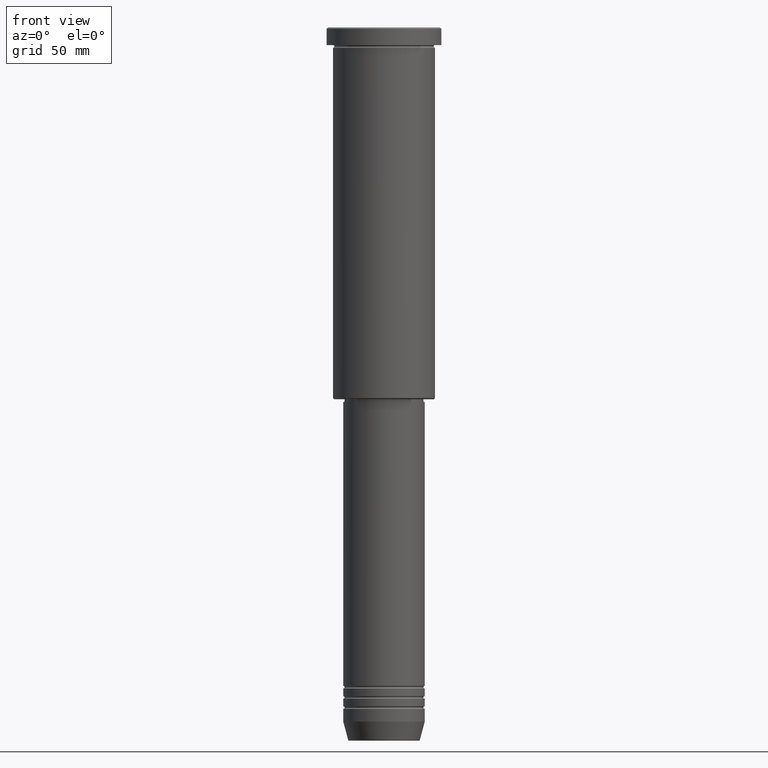
[diagram: clean part render]
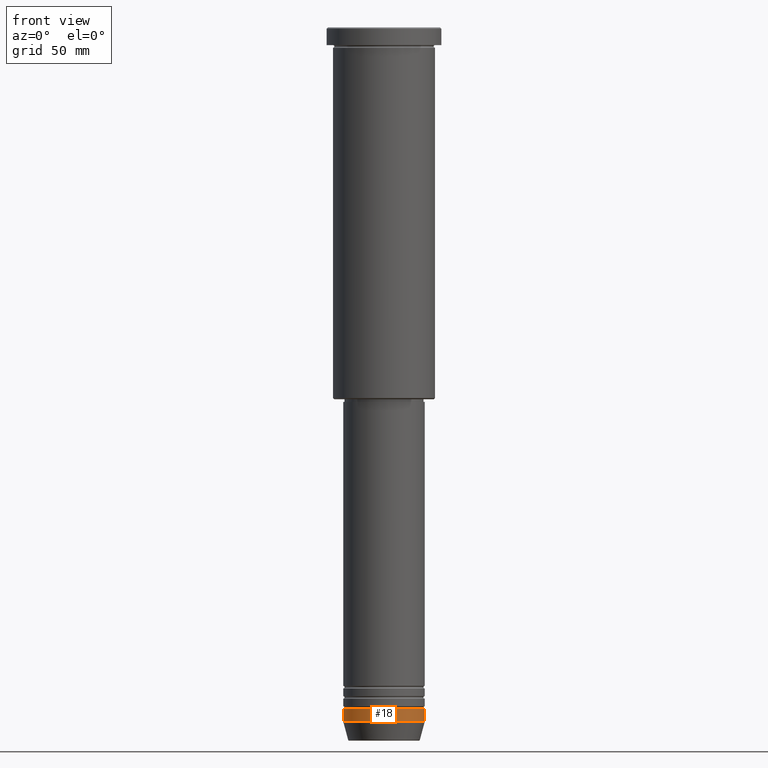
[diagram: same view with one face highlighted and labeled with its STEP entity id]
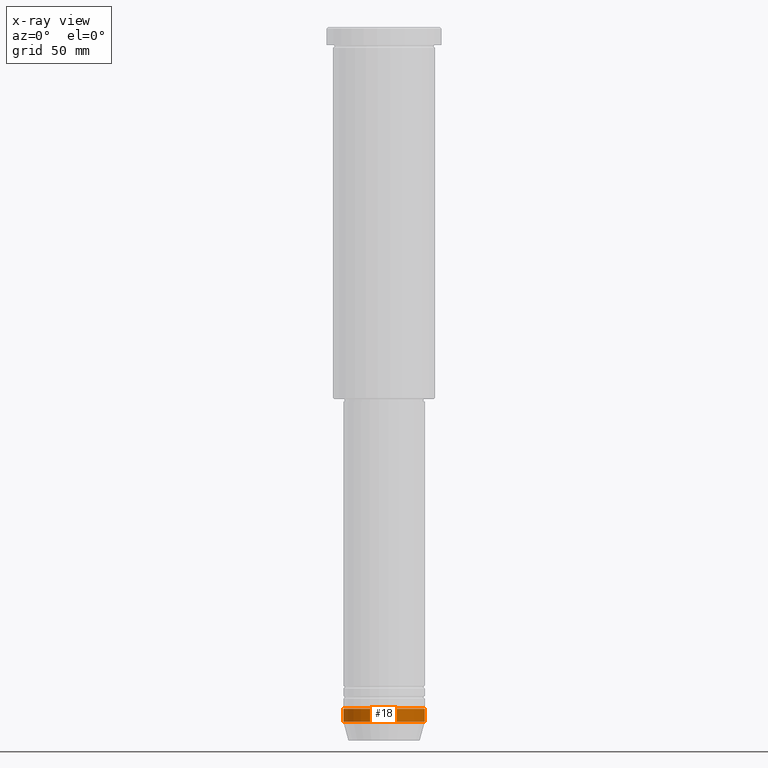
[diagram: x-ray of the same camera — body ghosted, the highlighted face saturated]
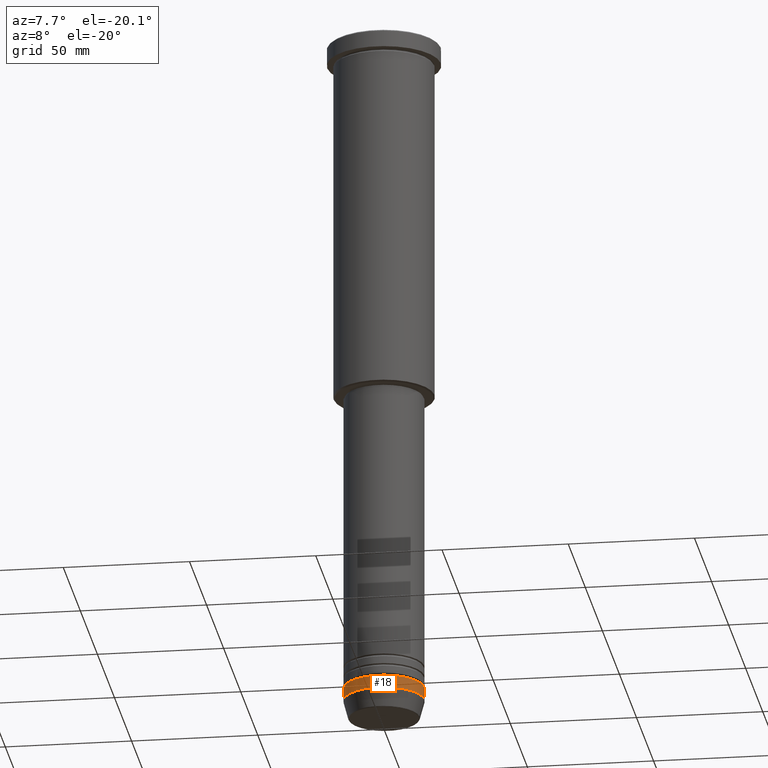
[diagram: same view with one face highlighted and labeled with its STEP entity id]
A machine part, front view. The second image highlights one B-rep face of the part: STEP entity #18.
The next image is the same camera in x-ray: the body ghosted, the highlighted face saturated — about 0% of this face is hidden behind the body in this view.
A second angle (auxiliary view) of the same face is appended — the face is thin or edge-on in the first view.
In plain terms, the highlighted cylindrical surface (partial cylindrical patch) has radius 16 mm, axis along (-0, -0, 1).
Its self-contained STEP definition (entity closure, byte-faithful):
#14 = VERTEX_POINT ( 'NONE', #983 ) ;
#15 = LINE ( 'NONE', #848, #1053 ) ;
#18 = ADVANCED_FACE ( 'NONE', ( #1160 ), #635, .T. ) ;
#39 = CIRCLE ( 'NONE', #619, 16.00000000000000000 ) ;
#56 = CIRCLE ( 'NONE', #972, 16.00000000000000000 ) ;
#96 = VECTOR ( 'NONE', #664, 1000.000000000000000 ) ;
#138 = DIRECTION ( 'NONE',  ( -0.000000000000000000, -0.000000000000000000, 1.000000000000000000 ) ) ;
#157 = CARTESIAN_POINT ( 'NONE',  ( 0.000000000000000000, 0.000000000000000000, -267.5000000000000000 ) ) ;
#274 = VERTEX_POINT ( 'NONE', #830 ) ;
#284 = LINE ( 'NONE', #293, #96 ) ;
#293 = CARTESIAN_POINT ( 'NONE',  ( -16.00000000000000000, 1.959434878635765131E-15, 0.000000000000000000 ) ) ;
#353 = ORIENTED_EDGE ( 'NONE', *, *, #1145, .F. ) ;
#392 = DIRECTION ( 'NONE',  ( -0.000000000000000000, -0.000000000000000000, 1.000000000000000000 ) ) ;
#420 = ORIENTED_EDGE ( 'NONE', *, *, #814, .F. ) ;
#422 = DIRECTION ( 'NONE',  ( 1.000000000000000000, 0.000000000000000000, 0.000000000000000000 ) ) ;
#439 = VERTEX_POINT ( 'NONE', #689 ) ;
#619 = AXIS2_PLACEMENT_3D ( 'NONE', #157, #1144, #422 ) ;
#624 = DIRECTION ( 'NONE',  ( 1.000000000000000000, 0.000000000000000000, 0.000000000000000000 ) ) ;
#635 = CYLINDRICAL_SURFACE ( 'NONE', #718, 16.00000000000000000 ) ;
#648 = DIRECTION ( 'NONE',  ( -0.000000000000000000, -0.000000000000000000, 1.000000000000000000 ) ) ;
#664 = DIRECTION ( 'NONE',  ( -0.000000000000000000, -0.000000000000000000, 1.000000000000000000 ) ) ;
#689 = CARTESIAN_POINT ( 'NONE',  ( 16.00000000000000000, 0.000000000000000000, -267.5000000000000000 ) ) ;
#718 = AXIS2_PLACEMENT_3D ( 'NONE', #808, #648, #1002 ) ;
#763 = EDGE_CURVE ( 'NONE', #1111, #274, #56, .T. ) ;
#765 = CARTESIAN_POINT ( 'NONE',  ( -16.00000000000000000, 1.959434878635765131E-15, -272.5000000000000000 ) ) ;
#794 = CARTESIAN_POINT ( 'NONE',  ( 0.000000000000000000, 0.000000000000000000, -272.5000000000000000 ) ) ;
#808 = CARTESIAN_POINT ( 'NONE',  ( 0.000000000000000000, 0.000000000000000000, 0.000000000000000000 ) ) ;
#810 = EDGE_LOOP ( 'NONE', ( #353, #962, #1003, #420 ) ) ;
#814 = EDGE_CURVE ( 'NONE', #14, #439, #39, .T. ) ;
#830 = CARTESIAN_POINT ( 'NONE',  ( 16.00000000000000000, 0.000000000000000000, -272.5000000000000000 ) ) ;
#848 = CARTESIAN_POINT ( 'NONE',  ( 16.00000000000000000, 0.000000000000000000, 0.000000000000000000 ) ) ;
#962 = ORIENTED_EDGE ( 'NONE', *, *, #763, .T. ) ;
#972 = AXIS2_PLACEMENT_3D ( 'NONE', #794, #138, #624 ) ;
#983 = CARTESIAN_POINT ( 'NONE',  ( -16.00000000000000000, 1.959434878635765131E-15, -267.5000000000000000 ) ) ;
#1002 = DIRECTION ( 'NONE',  ( 1.000000000000000000, 0.000000000000000000, 0.000000000000000000 ) ) ;
#1003 = ORIENTED_EDGE ( 'NONE', *, *, #1055, .T. ) ;
#1053 = VECTOR ( 'NONE', #392, 1000.000000000000000 ) ;
#1055 = EDGE_CURVE ( 'NONE', #274, #439, #15, .T. ) ;
#1111 = VERTEX_POINT ( 'NONE', #765 ) ;
#1144 = DIRECTION ( 'NONE',  ( -0.000000000000000000, -0.000000000000000000, 1.000000000000000000 ) ) ;
#1145 = EDGE_CURVE ( 'NONE', #1111, #14, #284, .T. ) ;
#1160 = FACE_OUTER_BOUND ( 'NONE', #810, .T. ) ;